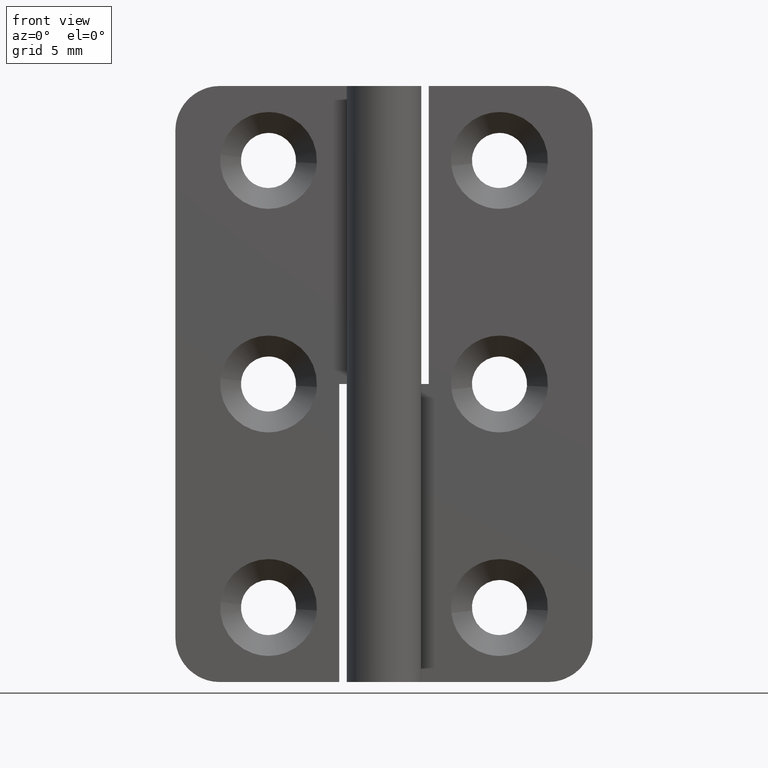
[diagram: clean part render]
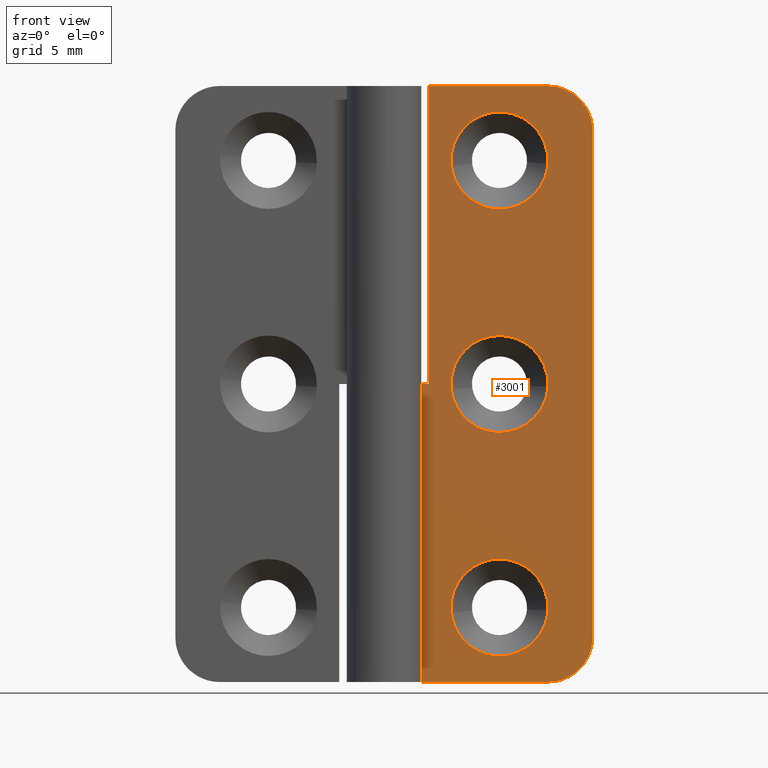
[diagram: same view with one face highlighted and labeled with its STEP entity id]
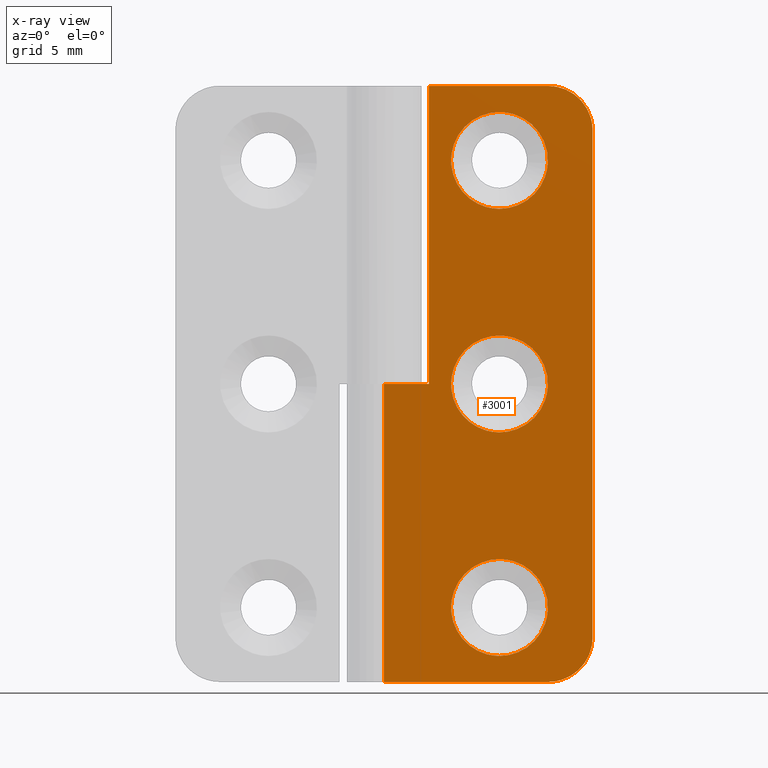
[diagram: x-ray of the same camera — body ghosted, the highlighted face saturated]
A machine part, front view. The second image highlights one B-rep face of the part: STEP entity #3001.
The next image is the same camera in x-ray: the body ghosted, the highlighted face saturated — about 0% of this face is hidden behind the body in this view.
In plain terms, the highlighted face is a freeform B-spline surface patch.
Its self-contained STEP definition (entity closure, byte-faithful):
#1644=CARTESIAN_POINT('',(4.521225121331382,0.999999999996060,4.629172839581507));
#1645=VERTEX_POINT('',#1644);
#1651=CARTESIAN_POINT('',(7.750000000000000,1.0,1.750000000000000));
#1652=VERTEX_POINT('',#1651);
#1653=CARTESIAN_POINT('',(4.521225121331382,0.999999999996060,4.629172839581508));
#1654=CARTESIAN_POINT('',(4.851900231434984,1.0,1.750000000000000));
#1655=CARTESIAN_POINT('',(7.750000000000000,1.0,1.750000000000000));
#1663=(BOUNDED_CURVE()B_SPLINE_CURVE(2,(#1653,#1654,#1655),.UNSPECIFIED.,.F.,.U.)B_SPLINE_CURVE_WITH_KNOTS((3,3),(0.269767755877854,0.500000000000000),.UNSPECIFIED.)CURVE()GEOMETRIC_REPRESENTATION_ITEM()RATIONAL_B_SPLINE_CURVE((0.957343736458209,0.730266147777680,1.0))REPRESENTATION_ITEM(''));
#1664=EDGE_CURVE('',#1645,#1652,#1663,.T.);
#1666=CARTESIAN_POINT('',(10.993938275493500,0.999999739130517,4.801590926522444));
#1667=VERTEX_POINT('',#1666);
#1668=CARTESIAN_POINT('',(7.750000000000000,1.0,1.750000000000000));
#1669=CARTESIAN_POINT('',(10.807293486114224,1.0,1.750000000000000));
#1670=CARTESIAN_POINT('',(10.993938275493504,0.999999739130517,4.801590926522444));
#1678=(BOUNDED_CURVE()B_SPLINE_CURVE(2,(#1668,#1669,#1670),.UNSPECIFIED.,.F.,.U.)B_SPLINE_CURVE_WITH_KNOTS((3,3),(0.500000000000000,0.739332892878144),.UNSPECIFIED.)CURVE()GEOMETRIC_REPRESENTATION_ITEM()RATIONAL_B_SPLINE_CURVE((1.0,0.719604074547941,0.976071893013367))REPRESENTATION_ITEM(''));
#1679=EDGE_CURVE('',#1652,#1667,#1678,.T.);
#1774=CARTESIAN_POINT('',(7.750000000000000,1.0,8.250000000000000));
#1775=VERTEX_POINT('',#1774);
#1776=CARTESIAN_POINT('',(10.993938275493504,0.999999739130517,4.801590926522444));
#1777=CARTESIAN_POINT('',(11.000000000000002,1.0,4.900702865419599));
#1778=CARTESIAN_POINT('',(11.0,1.0,5.0));
#1779=CARTESIAN_POINT('',(11.0,1.0,8.250000000000000));
#1780=CARTESIAN_POINT('',(7.750000000000000,1.0,8.250000000000000));
#1788=(BOUNDED_CURVE()B_SPLINE_CURVE(2,(#1776,#1777,#1778,#1779,#1780),.UNSPECIFIED.,.F.,.U.)B_SPLINE_CURVE_WITH_KNOTS((3,2,3),(0.739332892878144,0.750000000000000,1.0),.UNSPECIFIED.)CURVE()GEOMETRIC_REPRESENTATION_ITEM()RATIONAL_B_SPLINE_CURVE((0.976071893013367,0.987502706638606,1.0,0.707106781186547,1.0))REPRESENTATION_ITEM(''));
#1789=EDGE_CURVE('',#1667,#1775,#1788,.T.);
#1791=CARTESIAN_POINT('',(7.750000000000000,1.0,8.250000000000000));
#1792=CARTESIAN_POINT('',(4.500000000000000,1.0,8.250000000000000));
#1793=CARTESIAN_POINT('',(4.500000000000001,1.0,5.0));
#1794=CARTESIAN_POINT('',(4.500000000000001,1.0,4.813978986155810));
#1795=CARTESIAN_POINT('',(4.521225121331382,0.999999999996060,4.629172839581508));
#1803=(BOUNDED_CURVE()B_SPLINE_CURVE(2,(#1791,#1792,#1793,#1794,#1795),.UNSPECIFIED.,.F.,.U.)B_SPLINE_CURVE_WITH_KNOTS((3,2,3),(0.0,0.250000000000000,0.269767755877854),.UNSPECIFIED.)CURVE()GEOMETRIC_REPRESENTATION_ITEM()RATIONAL_B_SPLINE_CURVE((1.0,0.707106781186547,1.0,0.976840633408867,0.957343736458209))REPRESENTATION_ITEM(''));
#1804=EDGE_CURVE('',#1775,#1645,#1803,.T.);
#1972=CARTESIAN_POINT('',(4.521225121331382,0.999999999996060,19.629172839581511));
#1973=VERTEX_POINT('',#1972);
#1979=CARTESIAN_POINT('',(7.750000000000000,1.0,16.750000000000000));
#1980=VERTEX_POINT('',#1979);
#1981=CARTESIAN_POINT('',(4.521225121331382,0.999999999996060,19.629172839581511));
#1982=CARTESIAN_POINT('',(4.851900231434984,1.0,16.750000000000000));
#1983=CARTESIAN_POINT('',(7.750000000000000,1.0,16.750000000000000));
#1991=(BOUNDED_CURVE()B_SPLINE_CURVE(2,(#1981,#1982,#1983),.UNSPECIFIED.,.F.,.U.)B_SPLINE_CURVE_WITH_KNOTS((3,3),(0.269767755877854,0.500000000000000),.UNSPECIFIED.)CURVE()GEOMETRIC_REPRESENTATION_ITEM()RATIONAL_B_SPLINE_CURVE((0.957343736458209,0.730266147777680,1.0))REPRESENTATION_ITEM(''));
#1992=EDGE_CURVE('',#1973,#1980,#1991,.T.);
#1994=CARTESIAN_POINT('',(10.993938275493500,0.999999739130516,19.801590926522440));
#1995=VERTEX_POINT('',#1994);
#1996=CARTESIAN_POINT('',(7.750000000000000,1.0,16.750000000000000));
#1997=CARTESIAN_POINT('',(10.807293486114222,1.0,16.750000000000004));
#1998=CARTESIAN_POINT('',(10.993938275493505,0.999999739130516,19.801590926522440));
#2006=(BOUNDED_CURVE()B_SPLINE_CURVE(2,(#1996,#1997,#1998),.UNSPECIFIED.,.F.,.U.)B_SPLINE_CURVE_WITH_KNOTS((3,3),(0.500000000000000,0.739332892878144),.UNSPECIFIED.)CURVE()GEOMETRIC_REPRESENTATION_ITEM()RATIONAL_B_SPLINE_CURVE((1.0,0.719604074547941,0.976071893013366))REPRESENTATION_ITEM(''));
#2007=EDGE_CURVE('',#1980,#1995,#2006,.T.);
#2102=CARTESIAN_POINT('',(7.750000000000000,1.0,23.250000000000000));
#2103=VERTEX_POINT('',#2102);
#2104=CARTESIAN_POINT('',(10.993938275493505,0.999999739130516,19.801590926522440));
#2105=CARTESIAN_POINT('',(11.000000000000002,1.0,19.900702865419600));
#2106=CARTESIAN_POINT('',(11.0,1.0,20.0));
#2107=CARTESIAN_POINT('',(11.0,1.0,23.250000000000004));
#2108=CARTESIAN_POINT('',(7.750000000000000,1.0,23.250000000000000));
#2116=(BOUNDED_CURVE()B_SPLINE_CURVE(2,(#2104,#2105,#2106,#2107,#2108),.UNSPECIFIED.,.F.,.U.)B_SPLINE_CURVE_WITH_KNOTS((3,2,3),(0.739332892878144,0.750000000000000,1.0),.UNSPECIFIED.)CURVE()GEOMETRIC_REPRESENTATION_ITEM()RATIONAL_B_SPLINE_CURVE((0.976071893013366,0.987502706638606,1.0,0.707106781186547,1.0))REPRESENTATION_ITEM(''));
#2117=EDGE_CURVE('',#1995,#2103,#2116,.T.);
#2119=CARTESIAN_POINT('',(7.750000000000000,1.0,23.250000000000000));
#2120=CARTESIAN_POINT('',(4.500000000000000,1.0,23.250000000000004));
#2121=CARTESIAN_POINT('',(4.500000000000001,1.0,20.0));
#2122=CARTESIAN_POINT('',(4.500000000000001,1.0,19.813978986155810));
#2123=CARTESIAN_POINT('',(4.521225121331382,0.999999999996060,19.629172839581511));
#2131=(BOUNDED_CURVE()B_SPLINE_CURVE(2,(#2119,#2120,#2121,#2122,#2123),.UNSPECIFIED.,.F.,.U.)B_SPLINE_CURVE_WITH_KNOTS((3,2,3),(0.0,0.250000000000000,0.269767755877854),.UNSPECIFIED.)CURVE()GEOMETRIC_REPRESENTATION_ITEM()RATIONAL_B_SPLINE_CURVE((1.0,0.707106781186547,1.0,0.976840633408867,0.957343736458209))REPRESENTATION_ITEM(''));
#2132=EDGE_CURVE('',#2103,#1973,#2131,.T.);
#2300=CARTESIAN_POINT('',(4.521225121331382,0.999999999996060,34.629164839581406));
#2301=VERTEX_POINT('',#2300);
#2307=CARTESIAN_POINT('',(7.750000000000000,1.0,31.749991999999889));
#2308=VERTEX_POINT('',#2307);
#2309=CARTESIAN_POINT('',(4.521225121331382,0.999999999996060,34.629164839581406));
#2310=CARTESIAN_POINT('',(4.851900231434984,1.0,31.749991999999889));
#2311=CARTESIAN_POINT('',(7.750000000000000,1.0,31.749991999999889));
#2319=(BOUNDED_CURVE()B_SPLINE_CURVE(2,(#2309,#2310,#2311),.UNSPECIFIED.,.F.,.U.)B_SPLINE_CURVE_WITH_KNOTS((3,3),(0.269767755877854,0.500000000000000),.UNSPECIFIED.)CURVE()GEOMETRIC_REPRESENTATION_ITEM()RATIONAL_B_SPLINE_CURVE((0.957343736458209,0.730266147777680,1.0))REPRESENTATION_ITEM(''));
#2320=EDGE_CURVE('',#2301,#2308,#2319,.T.);
#2322=CARTESIAN_POINT('',(10.993938275493511,0.999999739130516,34.801582926522343));
#2323=VERTEX_POINT('',#2322);
#2324=CARTESIAN_POINT('',(7.750000000000000,1.0,31.749991999999889));
#2325=CARTESIAN_POINT('',(10.807293486114219,1.0,31.749991999999896));
#2326=CARTESIAN_POINT('',(10.993938275493509,0.999999739130516,34.801582926522343));
#2334=(BOUNDED_CURVE()B_SPLINE_CURVE(2,(#2324,#2325,#2326),.UNSPECIFIED.,.F.,.U.)B_SPLINE_CURVE_WITH_KNOTS((3,3),(0.500000000000000,0.739332892878143),.UNSPECIFIED.)CURVE()GEOMETRIC_REPRESENTATION_ITEM()RATIONAL_B_SPLINE_CURVE((1.0,0.719604074547942,0.976071893013366))REPRESENTATION_ITEM(''));
#2335=EDGE_CURVE('',#2308,#2323,#2334,.T.);
#2430=CARTESIAN_POINT('',(7.750000000000000,1.0,38.249991999999899));
#2431=VERTEX_POINT('',#2430);
#2432=CARTESIAN_POINT('',(10.993938275493504,0.999999739130516,34.801582926522336));
#2433=CARTESIAN_POINT('',(11.000000000000002,1.0,34.900694865419510));
#2434=CARTESIAN_POINT('',(11.0,1.0,34.999991999999899));
#2435=CARTESIAN_POINT('',(11.0,1.0,38.249991999999899));
#2436=CARTESIAN_POINT('',(7.750000000000000,1.0,38.249991999999899));
#2444=(BOUNDED_CURVE()B_SPLINE_CURVE(2,(#2432,#2433,#2434,#2435,#2436),.UNSPECIFIED.,.F.,.U.)B_SPLINE_CURVE_WITH_KNOTS((3,2,3),(0.739332892878144,0.750000000000000,1.0),.UNSPECIFIED.)CURVE()GEOMETRIC_REPRESENTATION_ITEM()RATIONAL_B_SPLINE_CURVE((0.976071893013367,0.987502706638606,1.0,0.707106781186547,1.0))REPRESENTATION_ITEM(''));
#2445=EDGE_CURVE('',#2323,#2431,#2444,.T.);
#2447=CARTESIAN_POINT('',(7.750000000000000,1.0,38.249991999999899));
#2448=CARTESIAN_POINT('',(4.500000000000000,1.0,38.249991999999899));
#2449=CARTESIAN_POINT('',(4.500000000000001,1.0,34.999991999999899));
#2450=CARTESIAN_POINT('',(4.500000000000001,1.0,34.813970986155702));
#2451=CARTESIAN_POINT('',(4.521225121331382,0.999999999996060,34.629164839581406));
#2459=(BOUNDED_CURVE()B_SPLINE_CURVE(2,(#2447,#2448,#2449,#2450,#2451),.UNSPECIFIED.,.F.,.U.)B_SPLINE_CURVE_WITH_KNOTS((3,2,3),(0.0,0.250000000000000,0.269767755877854),.UNSPECIFIED.)CURVE()GEOMETRIC_REPRESENTATION_ITEM()RATIONAL_B_SPLINE_CURVE((1.0,0.707106781186547,1.0,0.976840633408867,0.957343736458209))REPRESENTATION_ITEM(''));
#2460=EDGE_CURVE('',#2431,#2301,#2459,.T.);
#2624=CARTESIAN_POINT('',(14.0,1.0,3.0));
#2625=VERTEX_POINT('',#2624);
#2631=CARTESIAN_POINT('',(11.0,1.0,0.0));
#2632=VERTEX_POINT('',#2631);
#2633=CARTESIAN_POINT('',(14.0,1.0,3.0));
#2634=CARTESIAN_POINT('',(13.999999999999998,1.0,0.0));
#2635=CARTESIAN_POINT('',(11.0,1.0,0.0));
#2643=(BOUNDED_CURVE()B_SPLINE_CURVE(2,(#2633,#2634,#2635),.UNSPECIFIED.,.F.,.U.)CURVE()GEOMETRIC_REPRESENTATION_ITEM()QUASI_UNIFORM_CURVE()RATIONAL_B_SPLINE_CURVE((1.0,0.707106781186548,1.0))REPRESENTATION_ITEM(''));
#2644=EDGE_CURVE('',#2625,#2632,#2643,.T.);
#2685=CARTESIAN_POINT('',(11.0,1.0,39.999991999999892));
#2686=VERTEX_POINT('',#2685);
#2692=CARTESIAN_POINT('',(14.0,1.0,36.999991999999963));
#2693=VERTEX_POINT('',#2692);
#2694=CARTESIAN_POINT('',(11.0,1.0,39.999991999999899));
#2695=CARTESIAN_POINT('',(13.999999999999998,1.0,39.999991999999892));
#2696=CARTESIAN_POINT('',(14.0,1.0,36.999991999999899));
#2704=(BOUNDED_CURVE()B_SPLINE_CURVE(2,(#2694,#2695,#2696),.UNSPECIFIED.,.F.,.U.)CURVE()GEOMETRIC_REPRESENTATION_ITEM()QUASI_UNIFORM_CURVE()RATIONAL_B_SPLINE_CURVE((1.0,0.707106781186548,1.0))REPRESENTATION_ITEM(''));
#2705=EDGE_CURVE('',#2686,#2693,#2704,.T.);
#2757=CARTESIAN_POINT('',(0.0,1.0,20.0));
#2758=VERTEX_POINT('',#2757);
#2778=CARTESIAN_POINT('',(3.0,1.0,20.0));
#2779=VERTEX_POINT('',#2778);
#2780=CARTESIAN_POINT('',(3.0,1.0,20.0));
#2781=CARTESIAN_POINT('',(0.0,1.0,20.0));
#2782=QUASI_UNIFORM_CURVE('',1,(#2780,#2781),.UNSPECIFIED.,.F.,.U.);
#2783=EDGE_CURVE('',#2779,#2758,#2782,.T.);
#2798=CARTESIAN_POINT('',(3.0,1.0,39.999991999999892));
#2799=VERTEX_POINT('',#2798);
#2800=CARTESIAN_POINT('',(3.0,1.0,39.999991999999892));
#2801=CARTESIAN_POINT('',(3.0,1.0,20.0));
#2802=QUASI_UNIFORM_CURVE('',1,(#2800,#2801),.UNSPECIFIED.,.F.,.U.);
#2803=EDGE_CURVE('',#2799,#2779,#2802,.T.);
#2826=CARTESIAN_POINT('',(0.0,1.0,0.0));
#2827=VERTEX_POINT('',#2826);
#2828=CARTESIAN_POINT('',(11.0,1.0,0.0));
#2829=CARTESIAN_POINT('',(0.0,1.0,0.0));
#2830=QUASI_UNIFORM_CURVE('',1,(#2828,#2829),.UNSPECIFIED.,.F.,.U.);
#2831=EDGE_CURVE('',#2632,#2827,#2830,.T.);
#2896=CARTESIAN_POINT('',(14.0,1.0,36.999991999999963));
#2897=CARTESIAN_POINT('',(14.0,1.0,3.0));
#2898=QUASI_UNIFORM_CURVE('',1,(#2896,#2897),.UNSPECIFIED.,.F.,.U.);
#2899=EDGE_CURVE('',#2693,#2625,#2898,.T.);
#2922=CARTESIAN_POINT('',(11.0,1.0,39.999991999999892));
#2923=CARTESIAN_POINT('',(3.0,1.0,39.999991999999892));
#2924=QUASI_UNIFORM_CURVE('',1,(#2922,#2923),.UNSPECIFIED.,.F.,.U.);
#2925=EDGE_CURVE('',#2686,#2799,#2924,.T.);
#2960=CARTESIAN_POINT('',(0.0,1.0,20.0));
#2961=CARTESIAN_POINT('',(0.0,1.0,0.0));
#2962=QUASI_UNIFORM_CURVE('',1,(#2960,#2961),.UNSPECIFIED.,.F.,.U.);
#2963=EDGE_CURVE('',#2758,#2827,#2962,.T.);
#2968=CARTESIAN_POINT('',(-0.699299972865284,1.0,-1.997999522872247));
#2969=CARTESIAN_POINT('',(-0.699299972865284,1.0,41.997992595755527));
#2970=CARTESIAN_POINT('',(14.699300348374550,1.0,-1.997999522872247));
#2971=CARTESIAN_POINT('',(14.699300348374550,1.0,41.997992595755527));
#2972=B_SPLINE_SURFACE_WITH_KNOTS('',1,1,((#2968,#2970),(#2969,#2971)),.UNSPECIFIED.,.F.,.F.,.U.,(2,2),(2,2),(0.0,43.995992118627782),(0.0,15.398600321239829),.UNSPECIFIED.);
#2973=ORIENTED_EDGE('',*,*,#2925,.T.);
#2974=ORIENTED_EDGE('',*,*,#2803,.T.);
#2975=ORIENTED_EDGE('',*,*,#2783,.T.);
#2976=ORIENTED_EDGE('',*,*,#2963,.T.);
#2977=ORIENTED_EDGE('',*,*,#2831,.F.);
#2978=ORIENTED_EDGE('',*,*,#2644,.F.);
#2979=ORIENTED_EDGE('',*,*,#2899,.F.);
#2980=ORIENTED_EDGE('',*,*,#2705,.F.);
#2981=EDGE_LOOP('',(#2973,#2974,#2975,#2976,#2977,#2978,#2979,#2980));
#2982=FACE_OUTER_BOUND('',#2981,.T.);
#2983=ORIENTED_EDGE('',*,*,#2335,.F.);
#2984=ORIENTED_EDGE('',*,*,#2320,.F.);
#2985=ORIENTED_EDGE('',*,*,#2460,.F.);
#2986=ORIENTED_EDGE('',*,*,#2445,.F.);
#2987=EDGE_LOOP('',(#2983,#2984,#2985,#2986));
#2988=FACE_BOUND('',#2987,.T.);
#2989=ORIENTED_EDGE('',*,*,#2007,.F.);
#2990=ORIENTED_EDGE('',*,*,#1992,.F.);
#2991=ORIENTED_EDGE('',*,*,#2132,.F.);
#2992=ORIENTED_EDGE('',*,*,#2117,.F.);
#2993=EDGE_LOOP('',(#2989,#2990,#2991,#2992));
#2994=FACE_BOUND('',#2993,.T.);
#2995=ORIENTED_EDGE('',*,*,#1679,.F.);
#2996=ORIENTED_EDGE('',*,*,#1664,.F.);
#2997=ORIENTED_EDGE('',*,*,#1804,.F.);
#2998=ORIENTED_EDGE('',*,*,#1789,.F.);
#2999=EDGE_LOOP('',(#2995,#2996,#2997,#2998));
#3000=FACE_BOUND('',#2999,.T.);
#3001=ADVANCED_FACE('',(#2982,#2988,#2994,#3000),#2972,.F.);